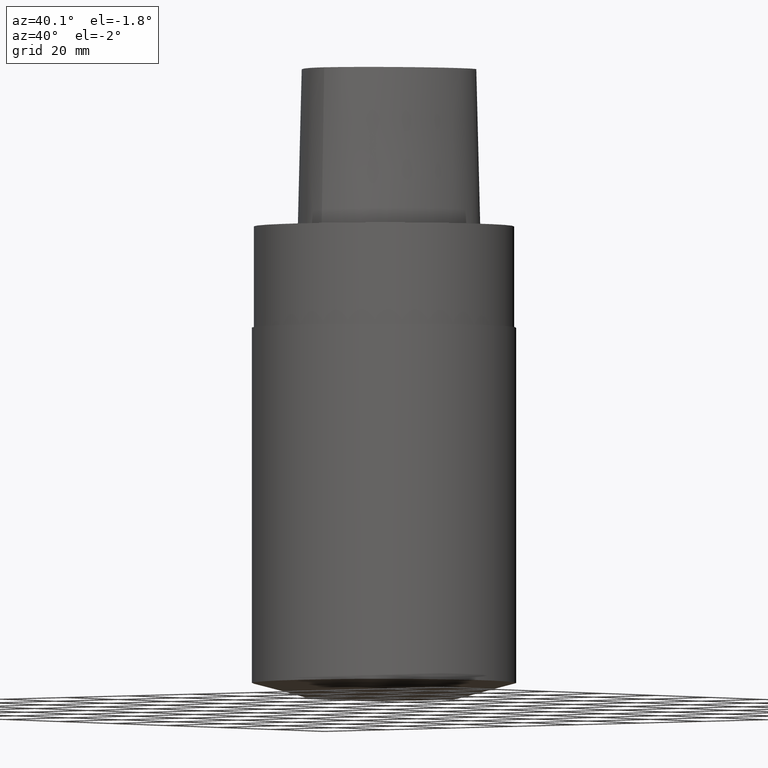
[diagram: clean part render]
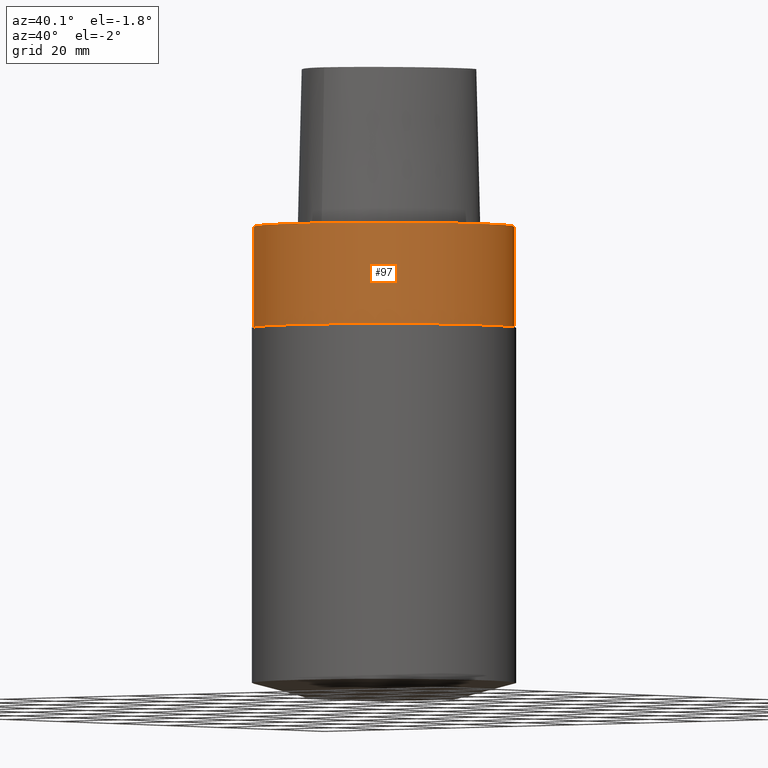
[diagram: same view with one face highlighted and labeled with its STEP entity id]
A machine part, auxiliary view. The second image highlights one B-rep face of the part: STEP entity #97.
In plain terms, the highlighted cylindrical surface (bore or boss wall) has radius 31.5 mm, axis along (0, 0, -1).
Its self-contained STEP definition (entity closure, byte-faithful):
#65=EDGE_CURVE('Unnamed[1]',#148,#148,#149,.T.);
#97=ADVANCED_FACE('Unnamed[1]',(#191,#192),#193,.T.);
#99=EDGE_CURVE('Unnamed[1]',#195,#195,#196,.T.);
#148=VERTEX_POINT('',#297);
#149=CIRCLE('',#298,31.5);
#191=FACE_BOUND('',#438,.T.);
#192=FACE_BOUND('',#439,.T.);
#193=CYLINDRICAL_SURFACE('',#440,31.5);
#195=VERTEX_POINT('',#443);
#196=CIRCLE('',#444,31.5);
#297=CARTESIAN_POINT('',(-3.88267476788467E-031,31.5,3.85763741731416E-015));
#298=AXIS2_PLACEMENT_3D('',#538,#539,#540);
#438=EDGE_LOOP('',(#587));
#439=EDGE_LOOP('',(#588));
#440=AXIS2_PLACEMENT_3D('',#589,#590,#591);
#443=CARTESIAN_POINT('',(1.50019232895551E-015,31.5,-24.5));
#444=AXIS2_PLACEMENT_3D('',#592,#593,#594);
#538=CARTESIAN_POINT('',(0.0,0.0,0.0));
#539=DIRECTION('',(6.12323399573677E-017,1.22464679914735E-016,-1.0));
#540=DIRECTION('',(-1.23259516440783E-032,1.0,1.22464679914735E-016));
#587=ORIENTED_EDGE('',*,*,#99,.F.);
#588=ORIENTED_EDGE('',*,*,#65,.T.);
#589=CARTESIAN_POINT('',(7.50096164477754E-016,1.50019232895551E-015,-12.25));
#590=DIRECTION('',(6.12323399573677E-017,1.22464679914735E-016,-1.0));
#591=DIRECTION('',(-1.23259516440783E-032,1.0,1.22464679914735E-016));
#592=CARTESIAN_POINT('',(1.50019232895551E-015,3.00038465791101E-015,-24.5));
#593=DIRECTION('',(6.12323399573677E-017,1.22464679914735E-016,-1.0));
#594=DIRECTION('',(-1.23259516440783E-032,1.0,1.22464679914735E-016));